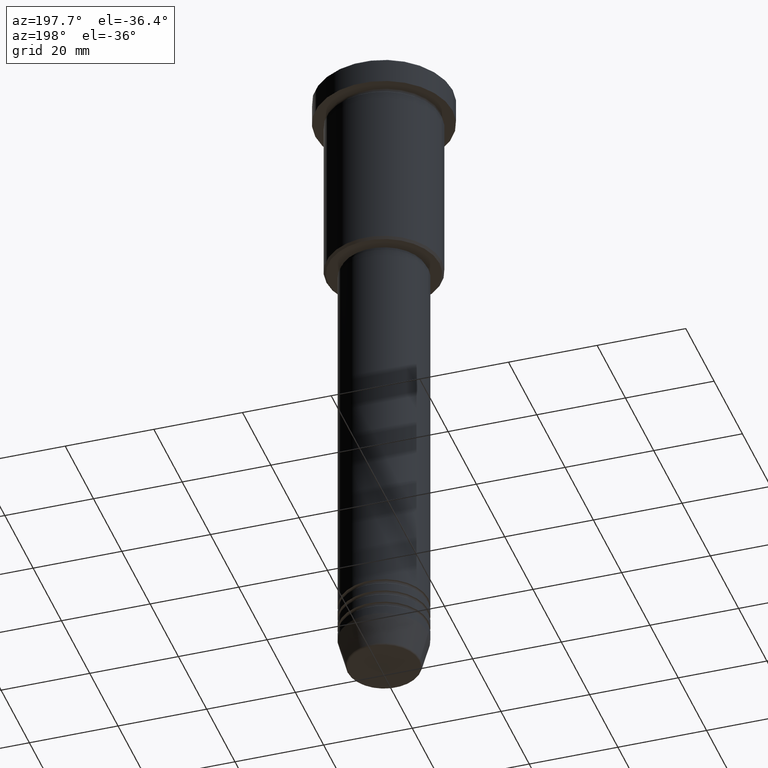
[diagram: clean part render]
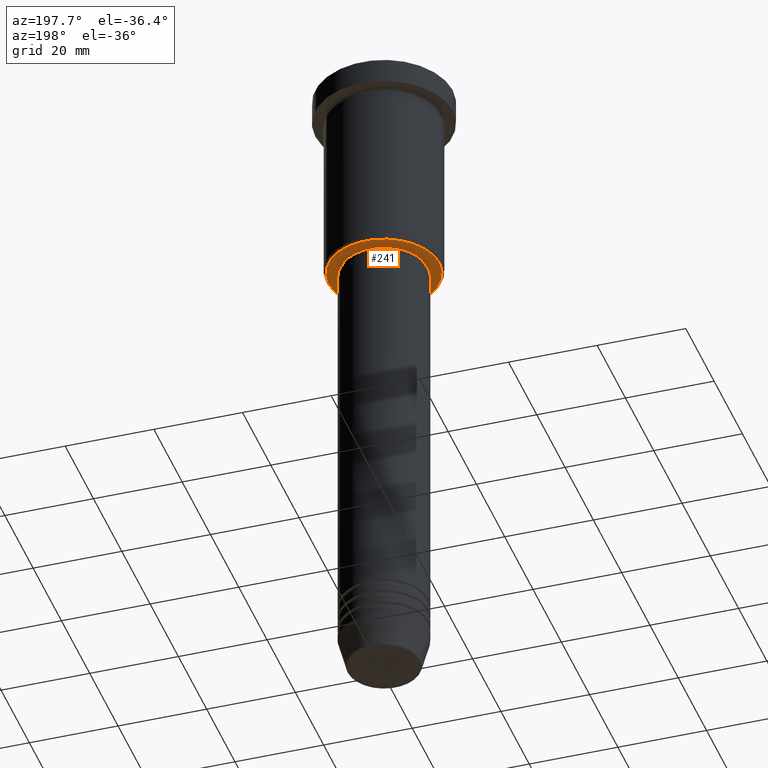
[diagram: same view with one face highlighted and labeled with its STEP entity id]
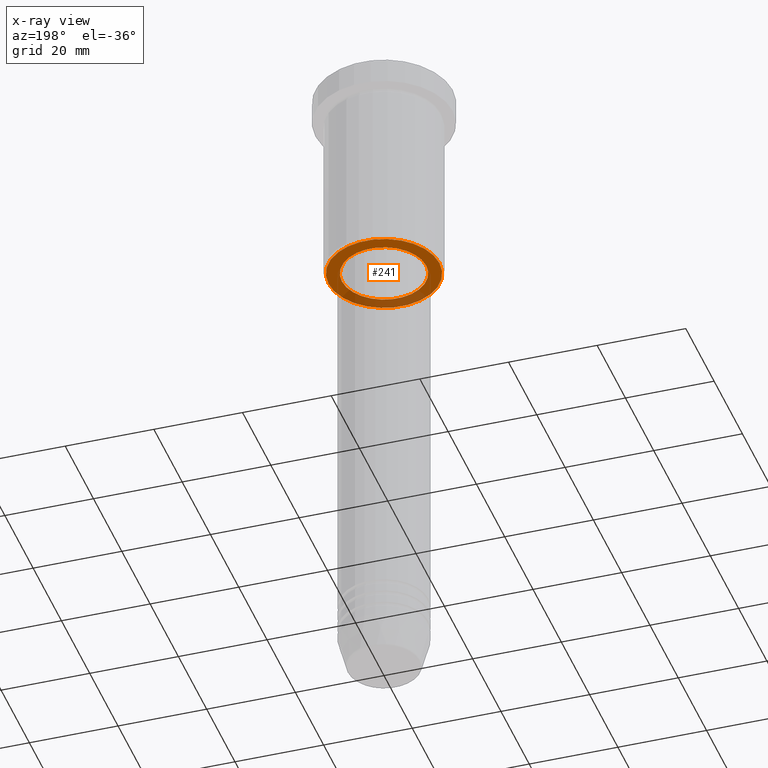
[diagram: x-ray of the same camera — body ghosted, the highlighted face saturated]
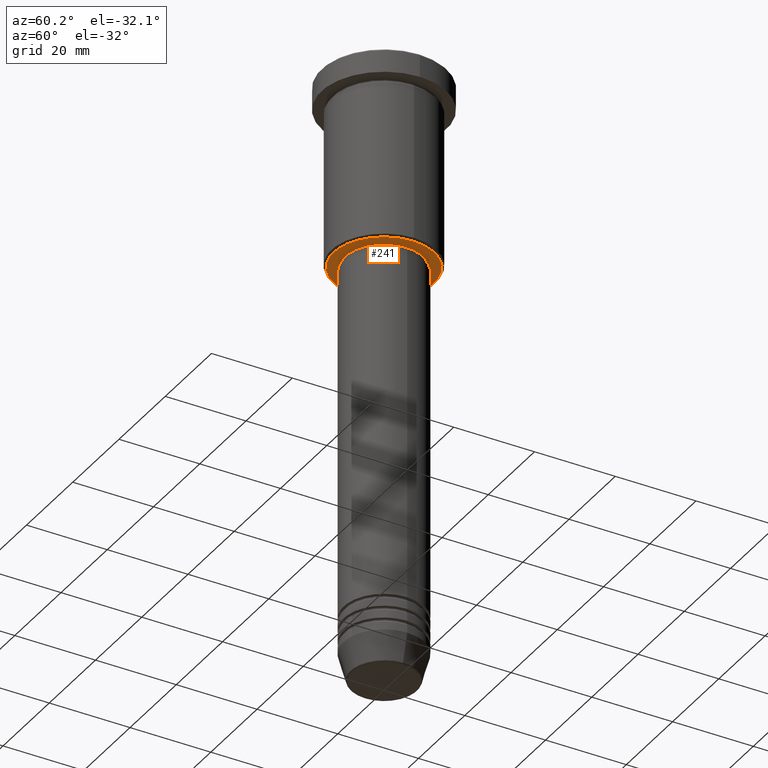
[diagram: same view with one face highlighted and labeled with its STEP entity id]
A machine part, auxiliary view. The second image highlights one B-rep face of the part: STEP entity #241.
The next image is the same camera in x-ray: the body ghosted, the highlighted face saturated — about 27% of this face is hidden behind the body in this view.
A second angle (auxiliary view) of the same face is appended — the face is thin or edge-on in the first view.
In plain terms, the highlighted planar face has unit normal (0, 0, -1).
Its self-contained STEP definition (entity closure, byte-faithful):
#44 = CARTESIAN_POINT ( 'NONE',  ( 0.000000000000000000, 0.000000000000000000, -45.99999999999998579 ) ) ;
#63 = FACE_BOUND ( 'NONE', #640, .T. ) ;
#138 = DIRECTION ( 'NONE',  ( -1.000000000000000000, 0.000000000000000000, 0.000000000000000000 ) ) ;
#175 = ORIENTED_EDGE ( 'NONE', *, *, #990, .T. ) ;
#241 = ADVANCED_FACE ( 'NONE', ( #515, #63 ), #319, .T. ) ;
#287 = CIRCLE ( 'NONE', #871, 12.50000000000001066 ) ;
#319 = PLANE ( 'NONE',  #741 ) ;
#334 = DIRECTION ( 'NONE',  ( 0.000000000000000000, 0.000000000000000000, -1.000000000000000000 ) ) ;
#406 = CARTESIAN_POINT ( 'NONE',  ( -12.50000000000001066, 1.561424668912876097E-15, -45.99999999999998579 ) ) ;
#413 = DIRECTION ( 'NONE',  ( -0.000000000000000000, -0.000000000000000000, 1.000000000000000000 ) ) ;
#420 = CARTESIAN_POINT ( 'NONE',  ( -9.500000000000000000, 1.163414459189985485E-15, -45.99999999999998579 ) ) ;
#426 = CIRCLE ( 'NONE', #1083, 9.500000000000000000 ) ;
#451 = VERTEX_POINT ( 'NONE', #1054 ) ;
#455 = ORIENTED_EDGE ( 'NONE', *, *, #1003, .T. ) ;
#459 = CARTESIAN_POINT ( 'NONE',  ( 12.50000000000001066, 0.000000000000000000, -45.99999999999998579 ) ) ;
#473 = CARTESIAN_POINT ( 'NONE',  ( 0.000000000000000000, 0.000000000000000000, -45.99999999999998579 ) ) ;
#499 = CARTESIAN_POINT ( 'NONE',  ( 0.000000000000000000, 0.000000000000000000, -45.99999999999998579 ) ) ;
#513 = EDGE_CURVE ( 'NONE', #451, #694, #851, .T. ) ;
#515 = FACE_OUTER_BOUND ( 'NONE', #1124, .T. ) ;
#525 = AXIS2_PLACEMENT_3D ( 'NONE', #44, #954, #138 ) ;
#556 = EDGE_CURVE ( 'NONE', #694, #451, #426, .T. ) ;
#603 = DIRECTION ( 'NONE',  ( 0.000000000000000000, 0.000000000000000000, -1.000000000000000000 ) ) ;
#631 = CARTESIAN_POINT ( 'NONE',  ( 0.000000000000000000, 0.000000000000000000, -45.99999999999998579 ) ) ;
#640 = EDGE_LOOP ( 'NONE', ( #952, #1093 ) ) ;
#666 = AXIS2_PLACEMENT_3D ( 'NONE', #499, #413, #845 ) ;
#675 = VERTEX_POINT ( 'NONE', #459 ) ;
#681 = CIRCLE ( 'NONE', #525, 12.50000000000001066 ) ;
#694 = VERTEX_POINT ( 'NONE', #420 ) ;
#741 = AXIS2_PLACEMENT_3D ( 'NONE', #796, #603, #1157 ) ;
#796 = CARTESIAN_POINT ( 'NONE',  ( 0.000000000000000000, 13.00000000000000000, -45.99999999999998579 ) ) ;
#840 = DIRECTION ( 'NONE',  ( -0.000000000000000000, -0.000000000000000000, 1.000000000000000000 ) ) ;
#845 = DIRECTION ( 'NONE',  ( 1.000000000000000000, 0.000000000000000000, 0.000000000000000000 ) ) ;
#851 = CIRCLE ( 'NONE', #666, 9.500000000000000000 ) ;
#857 = VERTEX_POINT ( 'NONE', #406 ) ;
#871 = AXIS2_PLACEMENT_3D ( 'NONE', #631, #334, #959 ) ;
#952 = ORIENTED_EDGE ( 'NONE', *, *, #513, .T. ) ;
#954 = DIRECTION ( 'NONE',  ( 0.000000000000000000, 0.000000000000000000, -1.000000000000000000 ) ) ;
#959 = DIRECTION ( 'NONE',  ( -1.000000000000000000, 0.000000000000000000, 0.000000000000000000 ) ) ;
#990 = EDGE_CURVE ( 'NONE', #675, #857, #681, .T. ) ;
#1003 = EDGE_CURVE ( 'NONE', #857, #675, #287, .T. ) ;
#1054 = CARTESIAN_POINT ( 'NONE',  ( 9.500000000000000000, 0.000000000000000000, -45.99999999999998579 ) ) ;
#1083 = AXIS2_PLACEMENT_3D ( 'NONE', #473, #840, #1095 ) ;
#1093 = ORIENTED_EDGE ( 'NONE', *, *, #556, .T. ) ;
#1095 = DIRECTION ( 'NONE',  ( 1.000000000000000000, 0.000000000000000000, 0.000000000000000000 ) ) ;
#1124 = EDGE_LOOP ( 'NONE', ( #175, #455 ) ) ;
#1157 = DIRECTION ( 'NONE',  ( -1.000000000000000000, 0.000000000000000000, -0.000000000000000000 ) ) ;